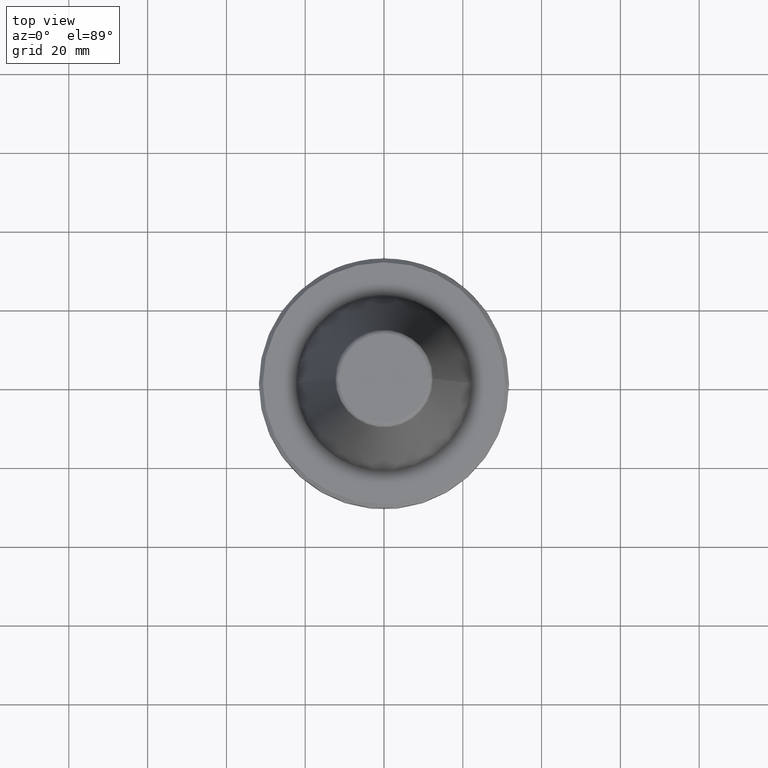
[diagram: clean part render]
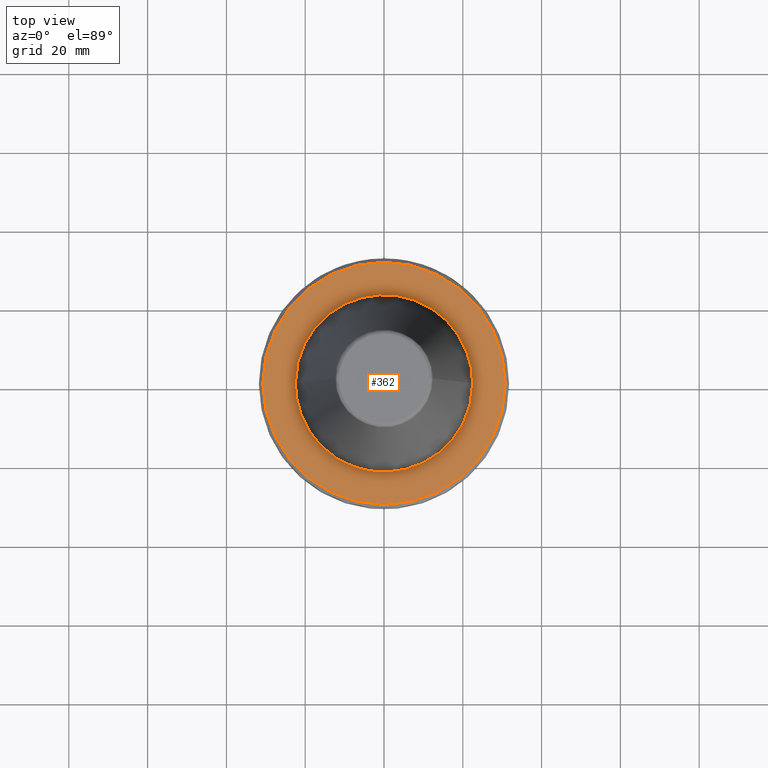
[diagram: same view with one face highlighted and labeled with its STEP entity id]
A machine part, top view. The second image highlights one B-rep face of the part: STEP entity #362.
In plain terms, the highlighted planar face has unit normal (0, 0, 1).
Its self-contained STEP definition (entity closure, byte-faithful):
#2 = CARTESIAN_POINT ( 'NONE',  ( 0.6879287486189594700, 22.50001621479642500, -3.199999999999999300 ) ) ;
#4 = CARTESIAN_POINT ( 'NONE',  ( -9.504079748845599700, 20.40055232577251900, -3.200000000000001500 ) ) ;
#9 = CARTESIAN_POINT ( 'NONE',  ( 21.99164062164117800, -4.811519987949947300, -3.200000000000000600 ) ) ;
#10 = CARTESIAN_POINT ( 'NONE',  ( -10.69502432680689100, 19.82135572082859200, -3.200000000000000600 ) ) ;
#17 = CARTESIAN_POINT ( 'NONE',  ( -11.67597141481949700, 19.24838585783297900, -3.200000000000001100 ) ) ;
#20 = CARTESIAN_POINT ( 'NONE',  ( 21.03591195338748300, -7.984698353444730200, -3.199999999999999300 ) ) ;
#61 = DIRECTION ( 'NONE',  ( -0.0000000000000000000, -0.0000000000000000000, 1.000000000000000000 ) ) ;
#77 = CARTESIAN_POINT ( 'NONE',  ( -4.719991316688983800, 22.00072453872944300, -3.200000000000000600 ) ) ;
#85 = CARTESIAN_POINT ( 'NONE',  ( 19.24838585783446000, 11.67597141481715200, -3.199999999999999700 ) ) ;
#89 = CARTESIAN_POINT ( 'NONE',  ( -6.571610993404996200, 21.54071728403503300, -3.199999999999999700 ) ) ;
#95 = CARTESIAN_POINT ( 'NONE',  ( 20.66783356944120300, 8.896980882709847500, -3.200000000000000200 ) ) ;
#98 = CARTESIAN_POINT ( 'NONE',  ( -7.603831144568696100, 21.18878749287429700, -3.200000000000000200 ) ) ;
#101 = CARTESIAN_POINT ( 'NONE',  ( 18.78040064549280100, 12.39175045570927500, -3.199999999999998800 ) ) ;
#104 = CARTESIAN_POINT ( 'NONE',  ( -8.324524703927975700, 20.90345235396907600, -3.199999999999999700 ) ) ;
#108 = FACE_OUTER_BOUND ( 'NONE', #422, .T. ) ;
#109 = CARTESIAN_POINT ( 'NONE',  ( -8.370451108366790300, 20.88510905071707000, -3.200000000000000200 ) ) ;
#119 = CARTESIAN_POINT ( 'NONE',  ( -1.375857497237935400, 22.49996757040714000, -3.199999999999999700 ) ) ;
#125 = CARTESIAN_POINT ( 'NONE',  ( -2.741286511587084400, 22.37475781688785000, -3.200000000000000200 ) ) ;
#126 = CARTESIAN_POINT ( 'NONE',  ( 4.719991316668444600, -22.00072453873692200, -3.200000000000000200 ) ) ;
#128 = CARTESIAN_POINT ( 'NONE',  ( 2.907343231789928200, 22.31611948088413700, -3.200000000000001100 ) ) ;
#129 = CARTESIAN_POINT ( 'NONE',  ( 21.74157624390884500, -5.873028755191072900, -3.200000000000000200 ) ) ;
#131 = EDGE_CURVE ( 'NONE', #1506, #1384, #964, .T. ) ;
#134 = CARTESIAN_POINT ( 'NONE',  ( -22.50000000000000700, 0.6880163828565797300, -3.200000000000001100 ) ) ;
#135 = CARTESIAN_POINT ( 'NONE',  ( -4.115307463143350800, 22.12045849206799600, -3.199999999999999700 ) ) ;
#136 = CARTESIAN_POINT ( 'NONE',  ( 5.341505914814308500, -21.86223353763812900, -3.199999999999999700 ) ) ;
#138 = CARTESIAN_POINT ( 'NONE',  ( -12.39175045570897300, 18.78040064549299600, -3.199999999999999700 ) ) ;
#143 = CARTESIAN_POINT ( 'NONE',  ( -4.139014538617297000, 22.11603594838256000, -3.200000000000000200 ) ) ;
#144 = CARTESIAN_POINT ( 'NONE',  ( 21.36063849915200700, -7.086048807701382100, -3.199999999999998800 ) ) ;
#146 = CARTESIAN_POINT ( 'NONE',  ( -12.47437238289334600, 18.72563884435544800, -3.200000000000000200 ) ) ;
#148 = CARTESIAN_POINT ( 'NONE',  ( 6.571610993358049800, -21.54071728405216400, -3.200000000000000600 ) ) ;
#149 = CARTESIAN_POINT ( 'NONE',  ( -12.63533988221804100, 18.61742605470986000, -3.200000000000000200 ) ) ;
#151 = CARTESIAN_POINT ( 'NONE',  ( 22.12851860711453600, -4.071751450877114200, -3.200000000000000200 ) ) ;
#210 = CARTESIAN_POINT ( 'NONE',  ( -5.341505914849514100, 21.86223353762529300, -3.200000000000000600 ) ) ;
#211 = CARTESIAN_POINT ( 'NONE',  ( 18.72563884435662000, 12.47437238289156800, -3.199999999999999300 ) ) ;
#212 = EDGE_CURVE ( 'NONE', #1384, #1506, #1522, .T. ) ;
#219 = CARTESIAN_POINT ( 'NONE',  ( -8.458563634142274500, 20.84958280862222700, -3.200000000000000200 ) ) ;
#227 = CARTESIAN_POINT ( 'NONE',  ( -22.50000000000000400, 2.755455298081544800E-015, -3.199999999999999300 ) ) ;
#230 = CARTESIAN_POINT ( 'NONE',  ( -8.590524805356333000, 20.79589492657273900, -3.199999999999999700 ) ) ;
#242 = CARTESIAN_POINT ( 'NONE',  ( -4.183831549484186700, 22.10760170058108200, -3.199999999999999700 ) ) ;
#244 = CARTESIAN_POINT ( 'NONE',  ( -4.251028217307362100, 22.09485092206773900, -3.200000000000001100 ) ) ;
#250 = CARTESIAN_POINT ( 'NONE',  ( -4.407618502888016800, 22.06440325785875700, -3.199999999999999300 ) ) ;
#251 = CARTESIAN_POINT ( 'NONE',  ( 7.603831144541866000, -21.18878749288407800, -3.200000000000000200 ) ) ;
#253 = CARTESIAN_POINT ( 'NONE',  ( 22.50000000000000400, 0.0000000000000000000, -3.199999999999999300 ) ) ;
#255 = CARTESIAN_POINT ( 'NONE',  ( -30.74999999999994300, 0.0000000000000000000, -3.200000000000036100 ) ) ;
#256 = CARTESIAN_POINT ( 'NONE',  ( 8.324524703929661500, -20.90345235396846500, -3.200000000000000600 ) ) ;
#257 = CARTESIAN_POINT ( 'NONE',  ( -12.87560569880213800, 18.45365423866010000, -3.200000000000001100 ) ) ;
#264 = CARTESIAN_POINT ( 'NONE',  ( -13.42792791067768300, 18.06135158014102500, -3.200000000000000200 ) ) ;
#269 = ORIENTED_EDGE ( 'NONE', *, *, #212, .T. ) ;
#300 = CARTESIAN_POINT ( 'NONE',  ( 0.0000000000000000000, 0.0000000000000000000, -3.200000000000036100 ) ) ;
#313 = CARTESIAN_POINT ( 'NONE',  ( -22.50000000000000400, 2.755455298081544800E-015, -3.199999999999999300 ) ) ;
#321 = CARTESIAN_POINT ( 'NONE',  ( -22.50000000000000700, -1.376388306158772500, -3.200000000000000600 ) ) ;
#322 = CARTESIAN_POINT ( 'NONE',  ( 22.50000000000000400, 0.0000000000000000000, -3.199999999999999300 ) ) ;
#324 = CARTESIAN_POINT ( 'NONE',  ( 18.61742605471209400, 12.63533988221464600, -3.199999999999999700 ) ) ;
#327 = CARTESIAN_POINT ( 'NONE',  ( -22.37479026312430700, -2.741111199249898400, -3.200000000000000600 ) ) ;
#329 = CARTESIAN_POINT ( 'NONE',  ( 22.50000000000000400, 1.376388306145680500, -3.200000000000000200 ) ) ;
#332 = CARTESIAN_POINT ( 'NONE',  ( 18.45365423866382000, 12.87560569879649600, -3.200000000000000200 ) ) ;
#344 = CARTESIAN_POINT ( 'NONE',  ( 18.06135158014742400, 13.42792791066801300, -3.200000000000000600 ) ) ;
#349 = CARTESIAN_POINT ( 'NONE',  ( 20.40055232577446300, 9.504079748842523000, -3.200000000000000600 ) ) ;
#352 = AXIS2_PLACEMENT_3D ( 'NONE', #300, #61, #955 ) ;
#362 = ADVANCED_FACE ( 'NONE', ( #1498, #108 ), #1120, .T. ) ;
#369 = CARTESIAN_POINT ( 'NONE',  ( 8.370451108365493600, -20.88510905071769100, -3.200000000000001100 ) ) ;
#370 = CARTESIAN_POINT ( 'NONE',  ( -22.17743819738468900, 3.797954953880907400, -3.199999999999999700 ) ) ;
#374 = CARTESIAN_POINT ( 'NONE',  ( 8.458563634139736100, -20.84958280862343500, -3.200000000000000600 ) ) ;
#379 = CARTESIAN_POINT ( 'NONE',  ( -14.49938022714616500, 17.23607257882436300, -3.199999999999999700 ) ) ;
#382 = CARTESIAN_POINT ( 'NONE',  ( 8.590524805351991600, -20.79589492657481400, -3.199999999999999700 ) ) ;
#383 = CARTESIAN_POINT ( 'NONE',  ( -15.36086717163463800, 16.45896426178976300, -3.200000000000001100 ) ) ;
#390 = B_SPLINE_CURVE_WITH_KNOTS ( 'NONE', 3,
 ( #730, #134, #1312, #726, #1056, #370, #941, #496, #1428, #1332, #1329, #1324, #1196, #1189, #1062, #1058, #1051, #840, #733, #728, #720, #628, #622, #616, #505, #501, #492, #383, #379, #264, #257, #149, #146, #138, #17, #10, #4, #1266, #230, #219, #109, #104, #98, #89, #210, #77, #250, #244, #242, #143, #135, #125, #119, #2, #731, #128, #1503, #1490, #1400, #1391, #1281, #1274, #1259, #1147, #1139, #1134, #1128, #1020, #1015, #1008, #1000, #913, #903, #897, #802, #796, #696, #690, #683, #573, #443, #344, #332, #324, #211, #101, #85, #580, #349, #95, #1397, #805, #1488, #1386, #1268, #1257, #1130, #998, #893, #793, #681, #567, #449, #440, #329, #322 ),
 .UNSPECIFIED., .F., .F.,
 ( 4, 1, 1, 1, 1, 1, 2, 2, 1, 1, 1, 1, 2, 2, 1, 1, 1, 2, 2, 2, 1, 1, 1, 2, 2, 1, 1, 1, 1, 2, 2, 1, 1, 1, 1, 1, 2, 2, 2, 1, 1, 1, 1, 1, 2, 2, 1, 1, 1, 1, 2, 2, 1, 1, 1, 2, 2, 2, 1, 1, 1, 2, 2, 1, 1, 1, 1, 2, 2, 1, 1, 1, 1, 1, 2, 2, 4 ),
 ( 0.0000000000000000000, 0.03124999999999839000, 0.04687499999999758500, 0.05468749999999717600, 0.05859374999999699500, 0.06054687499999689800, 0.06152343749999685700, 0.06249999999999680800, 0.09374999999999644700, 0.1093749999999962800, 0.1171874999999962000, 0.1210937499999961300, 0.1230468749999961400, 0.1249999999999961400, 0.1562499999999958900, 0.1718749999999958400, 0.1796874999999957800, 0.1835937499999957800, 0.1874999999999957800, 0.2499999999999961100, 0.2812499999999963400, 0.2968749999999964500, 0.3046874999999965000, 0.3085937499999965600, 0.3124999999999965600, 0.3437499999999969500, 0.3593749999999971700, 0.3671874999999973400, 0.3710937499999974500, 0.3730468749999974500, 0.3749999999999974500, 0.4062499999999965000, 0.4218749999999960000, 0.4296874999999957800, 0.4335937499999956700, 0.4355468749999956100, 0.4365234374999956100, 0.4374999999999956100, 0.4999999999999944500, 0.5312499999999938900, 0.5468749999999936700, 0.5546874999999936700, 0.5585937499999935600, 0.5605468749999935600, 0.5615234374999934500, 0.5624999999999934500, 0.5937499999999932300, 0.6093749999999931200, 0.6171874999999931200, 0.6210937499999930100, 0.6230468749999930100, 0.6249999999999930100, 0.6562499999999930100, 0.6718749999999931200, 0.6796874999999932300, 0.6835937499999932300, 0.6874999999999932300, 0.7499999999999935600, 0.7812499999999936700, 0.7968749999999937800, 0.8046874999999938900, 0.8085937499999938900, 0.8124999999999938900, 0.8437499999999942300, 0.8593749999999944500, 0.8671874999999946700, 0.8710937499999947800, 0.8730468749999948900, 0.8749999999999950000, 0.9062499999999963400, 0.9218749999999971100, 0.9296874999999975600, 0.9335937499999976700, 0.9355468749999977800, 0.9365234374999977800, 0.9374999999999978900, 1.000000000000000000 ),
 .UNSPECIFIED. ) ;
#407 = CARTESIAN_POINT ( 'NONE',  ( -22.12045798509555200, -4.115310202398622300, -3.200000000000000200 ) ) ;
#411 = CARTESIAN_POINT ( 'NONE',  ( -22.11603594838243900, -4.139014538617989700, -3.200000000000000600 ) ) ;
#419 = CARTESIAN_POINT ( 'NONE',  ( -22.10760170058084000, -4.183831549485550900, -3.200000000000000200 ) ) ;
#422 = EDGE_LOOP ( 'NONE', ( #919, #269 ) ) ;
#427 = CARTESIAN_POINT ( 'NONE',  ( -22.09485092206732700, -4.251028217309717600, -3.200000000000000600 ) ) ;
#433 = CARTESIAN_POINT ( 'NONE',  ( -22.06440325785796100, -4.407618502892575000, -3.200000000000000200 ) ) ;
#437 = CARTESIAN_POINT ( 'NONE',  ( -22.00072453872795100, -4.719991316697491600, -3.200000000000000600 ) ) ;
#440 = CARTESIAN_POINT ( 'NONE',  ( 22.37479026312431400, 2.741111199236805400, -3.200000000000000600 ) ) ;
#443 = CARTESIAN_POINT ( 'NONE',  ( 17.23607257883289300, 14.49938022713325700, -3.200000000000000200 ) ) ;
#449 = CARTESIAN_POINT ( 'NONE',  ( 22.12045798509555900, 4.115310202398825700, -3.200000000000000600 ) ) ;
#491 = AXIS2_PLACEMENT_3D ( 'NONE', #1439, #1075, #1476 ) ;
#492 = CARTESIAN_POINT ( 'NONE',  ( -17.00797338682269500, 14.81177920651246400, -3.200000000000000600 ) ) ;
#496 = CARTESIAN_POINT ( 'NONE',  ( -22.13986916256529700, 4.009566559497096200, -3.200000000000000200 ) ) ;
#500 = CARTESIAN_POINT ( 'NONE',  ( 8.896980882703543300, -20.66783356944393200, -3.199999999999999300 ) ) ;
#501 = CARTESIAN_POINT ( 'NONE',  ( -17.98264380950361400, 13.61204652639205500, -3.199999999999999700 ) ) ;
#505 = CARTESIAN_POINT ( 'NONE',  ( -18.88550870197691400, 12.23098025896405400, -3.200000000000000200 ) ) ;
#527 = CARTESIAN_POINT ( 'NONE',  ( -21.86223353762273500, -5.341505914864100600, -3.200000000000000600 ) ) ;
#545 = CARTESIAN_POINT ( 'NONE',  ( -21.54071728403163600, -6.571610993424445500, -3.200000000000000600 ) ) ;
#555 = CARTESIAN_POINT ( 'NONE',  ( -21.18878749287234700, -7.603831144579803700, -3.199999999999998800 ) ) ;
#565 = CARTESIAN_POINT ( 'NONE',  ( -20.90345235396920400, -8.324524703927284700, -3.199999999999999700 ) ) ;
#567 = CARTESIAN_POINT ( 'NONE',  ( 22.11603594838275600, 4.139014538616730300, -3.200000000000001100 ) ) ;
#573 = CARTESIAN_POINT ( 'NONE',  ( 16.45896426179462000, 15.36086717162726200, -3.199999999999999700 ) ) ;
#580 = CARTESIAN_POINT ( 'NONE',  ( 19.82135572083119300, 10.69502432680279600, -3.200000000000000600 ) ) ;
#604 = CARTESIAN_POINT ( 'NONE',  ( 9.504079748831721000, -20.40055232577914500, -3.200000000000000600 ) ) ;
#611 = CARTESIAN_POINT ( 'NONE',  ( 10.69502432678837800, -19.82135572083744200, -3.199999999999999700 ) ) ;
#614 = CARTESIAN_POINT ( 'NONE',  ( 21.14787063408966400, -7.686207123305460500, -3.200000000000000600 ) ) ;
#616 = CARTESIAN_POINT ( 'NONE',  ( -18.93590339580232400, 12.15280497094196100, -3.199999999999999700 ) ) ;
#617 = EDGE_LOOP ( 'NONE', ( #877, #926 ) ) ;
#622 = CARTESIAN_POINT ( 'NONE',  ( -19.03780993567813700, 11.99256734168333200, -3.200000000000000200 ) ) ;
#627 = CARTESIAN_POINT ( 'NONE',  ( 11.67597141480891300, -19.24838585783804100, -3.200000000000000600 ) ) ;
#628 = CARTESIAN_POINT ( 'NONE',  ( -19.18907189198502300, 11.75138774876048900, -3.200000000000000600 ) ) ;
#632 = CARTESIAN_POINT ( 'NONE',  ( 12.39175045571029600, -18.78040064549236700, -3.200000000000000200 ) ) ;
#652 = CARTESIAN_POINT ( 'NONE',  ( -20.88510905071626700, -8.370451108368008900, -3.199999999999999700 ) ) ;
#657 = CARTESIAN_POINT ( 'NONE',  ( -20.84958280862066700, -8.458563634144654800, -3.200000000000000600 ) ) ;
#662 = CARTESIAN_POINT ( 'NONE',  ( -20.79589492657008900, -8.590524805360397300, -3.200000000000000200 ) ) ;
#671 = CARTESIAN_POINT ( 'NONE',  ( -20.66783356943510700, -8.896980882719226700, -3.200000000000000200 ) ) ;
#675 = CARTESIAN_POINT ( 'NONE',  ( -20.40055232576401100, -9.504079748858595500, -3.199999999999999700 ) ) ;
#681 = CARTESIAN_POINT ( 'NONE',  ( 22.10760170058146200, 4.183831549483062200, -3.200000000000000200 ) ) ;
#683 = CARTESIAN_POINT ( 'NONE',  ( 14.81177920650271000, 17.00797338683744500, -3.200000000000000600 ) ) ;
#690 = CARTESIAN_POINT ( 'NONE',  ( 13.61204652639695000, 17.98264380950372400, -3.200000000000000200 ) ) ;
#696 = CARTESIAN_POINT ( 'NONE',  ( 12.23098025896375600, 18.88550870197690300, -3.199999999999999700 ) ) ;
#699 = DIRECTION ( 'NONE',  ( 1.000000000000000000, 0.0000000000000000000, -0.0000000000000000000 ) ) ;
#714 = CARTESIAN_POINT ( 'NONE',  ( 12.47437238289376500, -18.72563884435562500, -3.200000000000000600 ) ) ;
#720 = CARTESIAN_POINT ( 'NONE',  ( -19.53083148215308600, 11.18287332202958400, -3.199999999999999300 ) ) ;
#726 = CARTESIAN_POINT ( 'NONE',  ( -22.31609819896381800, 2.907458251726792000, -3.199999999999999700 ) ) ;
#728 = CARTESIAN_POINT ( 'NONE',  ( -20.16961076429744200, 10.02279629559074100, -3.199999999999999300 ) ) ;
#730 = CARTESIAN_POINT ( 'NONE',  ( -22.50000000000000400, 2.755455298081544800E-015, -3.199999999999999300 ) ) ;
#731 = CARTESIAN_POINT ( 'NONE',  ( 1.715646394992351700, 22.45307472456536100, -3.200000000000000600 ) ) ;
#732 = CARTESIAN_POINT ( 'NONE',  ( 4.251028217301676900, -22.09485092206981000, -3.200000000000000200 ) ) ;
#733 = CARTESIAN_POINT ( 'NONE',  ( -20.64043889494947600, 8.988933404968230800, -3.200000000000000600 ) ) ;
#761 = CARTESIAN_POINT ( 'NONE',  ( -19.82135572081725200, -10.69502432682423000, -3.200000000000000600 ) ) ;
#762 = VERTEX_POINT ( 'NONE', #1152 ) ;
#768 = CARTESIAN_POINT ( 'NONE',  ( -19.24838585782649900, -11.67597141482940200, -3.199999999999999700 ) ) ;
#776 = CARTESIAN_POINT ( 'NONE',  ( -18.78040064549380300, -12.39175045570773800, -3.200000000000000600 ) ) ;
#779 = CARTESIAN_POINT ( 'NONE',  ( -18.72563884435658800, -12.47437238289159500, -3.200000000000000200 ) ) ;
#783 = CARTESIAN_POINT ( 'NONE',  ( -18.61742605471202700, -12.63533988221470800, -3.199999999999999700 ) ) ;
#790 = CARTESIAN_POINT ( 'NONE',  ( -18.45365423866372400, -12.87560569879659900, -3.200000000000001100 ) ) ;
#793 = CARTESIAN_POINT ( 'NONE',  ( 22.09485092206839200, 4.251028217305421500, -3.199999999999999700 ) ) ;
#796 = CARTESIAN_POINT ( 'NONE',  ( 12.15280497093997500, 18.93590339580323000, -3.200000000000000200 ) ) ;
#802 = CARTESIAN_POINT ( 'NONE',  ( 11.99256734167953400, 19.03780993567986700, -3.199999999999999300 ) ) ;
#805 = CARTESIAN_POINT ( 'NONE',  ( 20.84958280862257900, 8.458563634141711400, -3.200000000000000200 ) ) ;
#825 = CARTESIAN_POINT ( 'NONE',  ( 12.63533988221884200, -18.61742605471019700, -3.200000000000000200 ) ) ;
#839 = CARTESIAN_POINT ( 'NONE',  ( 22.49999999999999600, -0.6880163828697204400, -3.199999999999998800 ) ) ;
#840 = CARTESIAN_POINT ( 'NONE',  ( -20.93772414133938800, 8.237955812653009200, -3.200000000000000200 ) ) ;
#847 = CARTESIAN_POINT ( 'NONE',  ( 12.87560569880346700, -18.45365423866068300, -3.200000000000000600 ) ) ;
#865 = CARTESIAN_POINT ( 'NONE',  ( -18.06135158014722800, -13.42792791066820300, -3.200000000000000600 ) ) ;
#870 = CARTESIAN_POINT ( 'NONE',  ( -17.23607257883263300, -14.49938022713351800, -3.200000000000000200 ) ) ;
#876 = CARTESIAN_POINT ( 'NONE',  ( -16.45896426179448100, -15.36086717162741000, -3.200000000000001100 ) ) ;
#877 = ORIENTED_EDGE ( 'NONE', *, *, #1509, .T. ) ;
#883 = CARTESIAN_POINT ( 'NONE',  ( -14.81177920650302200, -17.00797338683712900, -3.199999999999999300 ) ) ;
#889 = CARTESIAN_POINT ( 'NONE',  ( -13.61204652640028800, -17.98264380950038800, -3.200000000000000200 ) ) ;
#891 = CARTESIAN_POINT ( 'NONE',  ( -12.23098025896354500, -18.88550870197710900, -3.200000000000000200 ) ) ;
#893 = CARTESIAN_POINT ( 'NONE',  ( 22.06440325786003600, 4.407618502884258900, -3.200000000000000200 ) ) ;
#897 = CARTESIAN_POINT ( 'NONE',  ( 11.75138774875418000, 19.18907189198790100, -3.200000000000001100 ) ) ;
#903 = CARTESIAN_POINT ( 'NONE',  ( 11.18287332201877700, 19.53083148215803900, -3.200000000000000600 ) ) ;
#913 = CARTESIAN_POINT ( 'NONE',  ( 10.02279629557633300, 20.16961076430403600, -3.200000000000000600 ) ) ;
#919 = ORIENTED_EDGE ( 'NONE', *, *, #131, .T. ) ;
#926 = ORIENTED_EDGE ( 'NONE', *, *, #932, .T. ) ;
#932 = EDGE_CURVE ( 'NONE', #762, #1244, #1269, .T. ) ;
#935 = CARTESIAN_POINT ( 'NONE',  ( 13.42792791067997600, -18.06135158014202000, -3.199999999999999700 ) ) ;
#941 = CARTESIAN_POINT ( 'NONE',  ( -22.15133245634663700, 3.946100473368277900, -3.200000000000000200 ) ) ;
#947 = CARTESIAN_POINT ( 'NONE',  ( 4.183831549480899500, -22.10760170058227900, -3.200000000000000200 ) ) ;
#952 = CARTESIAN_POINT ( 'NONE',  ( 14.49938022714922100, -17.23607257882569900, -3.199999999999999300 ) ) ;
#955 = DIRECTION ( 'NONE',  ( 1.000000000000000000, 0.0000000000000000000, 0.0000000000000000000 ) ) ;
#962 = DIRECTION ( 'NONE',  ( 0.0000000000000000000, 0.0000000000000000000, 1.000000000000000000 ) ) ;
#964 = CIRCLE ( 'NONE', #352, 30.74999999999994300 ) ;
#969 = CARTESIAN_POINT ( 'NONE',  ( -12.15280497094398100, -18.93590339580075400, -3.199999999999999700 ) ) ;
#988 = CARTESIAN_POINT ( 'NONE',  ( -11.99256734168715800, -19.03780993567515600, -3.200000000000000200 ) ) ;
#997 = CARTESIAN_POINT ( 'NONE',  ( -11.75138774876684200, -19.18907189198004900, -3.200000000000000200 ) ) ;
#998 = CARTESIAN_POINT ( 'NONE',  ( 22.00072453873180600, 4.719991316681966300, -3.200000000000000200 ) ) ;
#1000 = CARTESIAN_POINT ( 'NONE',  ( 8.988933404959995600, 20.64043889495324200, -3.200000000000000600 ) ) ;
#1002 = CARTESIAN_POINT ( 'NONE',  ( -11.18287332204048700, -19.53083148214458500, -3.200000000000000600 ) ) ;
#1008 = CARTESIAN_POINT ( 'NONE',  ( 8.237955812653522600, 20.93772414133914200, -3.199999999999999700 ) ) ;
#1015 = CARTESIAN_POINT ( 'NONE',  ( 8.197263642342381500, 20.95368502148494400, -3.199999999999999700 ) ) ;
#1020 = CARTESIAN_POINT ( 'NONE',  ( 8.112282896138385300, 20.98673507276721400, -3.200000000000000200 ) ) ;
#1042 = CARTESIAN_POINT ( 'NONE',  ( 15.36086717163637700, -16.45896426179050900, -3.199999999999999700 ) ) ;
#1049 = CARTESIAN_POINT ( 'NONE',  ( 17.00797338681919900, -14.81177920651095200, -3.200000000000000600 ) ) ;
#1051 = CARTESIAN_POINT ( 'NONE',  ( -20.95368502148434700, 8.197263642344069000, -3.199999999999999300 ) ) ;
#1056 = CARTESIAN_POINT ( 'NONE',  ( -22.22708190165376200, 3.501431974159047400, -3.199999999999999700 ) ) ;
#1057 = CARTESIAN_POINT ( 'NONE',  ( 17.98264380952407700, -13.61204652636657500, -3.199999999999999700 ) ) ;
#1058 = CARTESIAN_POINT ( 'NONE',  ( -20.98673507276603100, 8.112282896141666200, -3.200000000000000600 ) ) ;
#1062 = CARTESIAN_POINT ( 'NONE',  ( -21.03591195339058500, 7.984698353433742600, -3.200000000000000600 ) ) ;
#1068 = CARTESIAN_POINT ( 'NONE',  ( 18.88550870197563500, -12.23098025896565000, -3.200000000000000200 ) ) ;
#1075 = DIRECTION ( 'NONE',  ( -0.0000000000000000000, -0.0000000000000000000, 1.000000000000000000 ) ) ;
#1086 = CARTESIAN_POINT ( 'NONE',  ( -10.02279629560528400, -20.16961076428609100, -3.200000000000000600 ) ) ;
#1097 = CARTESIAN_POINT ( 'NONE',  ( -8.988933404976533500, -20.64043889494298900, -3.199999999999999700 ) ) ;
#1102 = CARTESIAN_POINT ( 'NONE',  ( 0.0000000000000000000, 0.0000000000000000000, -3.200000000000000200 ) ) ;
#1104 = CARTESIAN_POINT ( 'NONE',  ( -8.237955812652499400, -20.93772414133978200, -3.199999999999999700 ) ) ;
#1110 = CARTESIAN_POINT ( 'NONE',  ( -8.197263642347373000, -20.95368502148340900, -3.199999999999999700 ) ) ;
#1120 = PLANE ( 'NONE',  #1194 ) ;
#1122 = CARTESIAN_POINT ( 'NONE',  ( -8.112282896148109000, -20.98673507276421500, -3.200000000000000200 ) ) ;
#1128 = CARTESIAN_POINT ( 'NONE',  ( 7.984698353428139100, 21.03591195339260300, -3.200000000000000200 ) ) ;
#1130 = CARTESIAN_POINT ( 'NONE',  ( 21.86223353762935800, 5.341505914837489000, -3.200000000000000600 ) ) ;
#1134 = CARTESIAN_POINT ( 'NONE',  ( 7.686207123274499500, 21.14787063409919600, -3.200000000000000600 ) ) ;
#1139 = CARTESIAN_POINT ( 'NONE',  ( 7.086048807648322300, 21.36063849916836300, -3.200000000000000600 ) ) ;
#1147 = CARTESIAN_POINT ( 'NONE',  ( 5.873028755120320600, 21.74157624393063400, -3.200000000000000600 ) ) ;
#1152 = CARTESIAN_POINT ( 'NONE',  ( 22.50000000000000400, 0.0000000000000000000, -3.199999999999999300 ) ) ;
#1169 = CARTESIAN_POINT ( 'NONE',  ( 18.93590339580105900, -12.15280497094321500, -3.200000000000000200 ) ) ;
#1174 = CARTESIAN_POINT ( 'NONE',  ( 22.45304634867161300, -1.715799754931167900, -3.200000000000000200 ) ) ;
#1188 = CARTESIAN_POINT ( 'NONE',  ( 2.741286511513688400, -22.37475781689234500, -3.199999999999999700 ) ) ;
#1189 = CARTESIAN_POINT ( 'NONE',  ( -21.14787063409543700, 7.686207123284956900, -3.200000000000000200 ) ) ;
#1194 = AXIS2_PLACEMENT_3D ( 'NONE', #1102, #962, #699 ) ;
#1195 = CARTESIAN_POINT ( 'NONE',  ( 19.03780993567572800, -11.99256734168571200, -3.200000000000000200 ) ) ;
#1196 = CARTESIAN_POINT ( 'NONE',  ( -21.36063849916189700, 7.086048807666240500, -3.199999999999999300 ) ) ;
#1203 = CARTESIAN_POINT ( 'NONE',  ( 19.18907189198100100, -11.75138774876444200, -3.200000000000001100 ) ) ;
#1227 = CARTESIAN_POINT ( 'NONE',  ( -7.984698353444732000, -21.03591195338748700, -3.200000000000000200 ) ) ;
#1232 = CARTESIAN_POINT ( 'NONE',  ( -7.686207123305462300, -21.14787063408966000, -3.200000000000000600 ) ) ;
#1240 = CARTESIAN_POINT ( 'NONE',  ( -7.086048807701388300, -21.36063849915201700, -3.200000000000001100 ) ) ;
#1244 = VERTEX_POINT ( 'NONE', #227 ) ;
#1251 = CARTESIAN_POINT ( 'NONE',  ( -5.873028755191068500, -21.74157624390884200, -3.200000000000001100 ) ) ;
#1255 = CARTESIAN_POINT ( 'NONE',  ( -4.811519987949943700, -21.99164062164117100, -3.199999999999999700 ) ) ;
#1257 = CARTESIAN_POINT ( 'NONE',  ( 21.54071728404044400, 6.571610993388965500, -3.200000000000000200 ) ) ;
#1259 = CARTESIAN_POINT ( 'NONE',  ( 4.811519987909519200, 21.99164062165363400, -3.200000000000000200 ) ) ;
#1266 = CARTESIAN_POINT ( 'NONE',  ( -8.896980882711639900, 20.66783356944006700, -3.199999999999999700 ) ) ;
#1268 = CARTESIAN_POINT ( 'NONE',  ( 21.18878749287739200, 7.603831144559534600, -3.200000000000000600 ) ) ;
#1269 = B_SPLINE_CURVE_WITH_KNOTS ( 'NONE', 3,
 ( #253, #839, #1174, #1309, #1313, #1322, #1328, #1432, #1436, #151, #9, #129, #144, #614, #20, #1527, #1442, #1430, #1418, #1336, #1331, #1203, #1195, #1169, #1068, #1057, #1049, #1042, #952, #935, #847, #825, #714, #632, #627, #611, #604, #500, #382, #374, #369, #256, #251, #148, #136, #126, #1525, #732, #947, #1310, #1421, #1188, #1484, #1478, #1469, #1463, #1460, #1377, #1372, #1366, #1358, #1353, #1255, #1251, #1240, #1232, #1227, #1122, #1110, #1104, #1097, #1086, #1002, #997, #988, #969, #891, #889, #883, #876, #870, #865, #790, #783, #779, #776, #768, #761, #675, #671, #662, #657, #652, #565, #555, #545, #527, #437, #433, #427, #419, #411, #407, #327, #321, #313 ),
 .UNSPECIFIED., .F., .F.,
 ( 4, 1, 1, 1, 1, 1, 2, 2, 1, 1, 1, 1, 2, 2, 1, 1, 1, 2, 2, 2, 1, 1, 1, 2, 2, 1, 1, 1, 1, 2, 2, 1, 1, 1, 1, 1, 2, 2, 2, 1, 1, 1, 1, 1, 2, 2, 1, 1, 1, 1, 2, 2, 1, 1, 1, 2, 2, 2, 1, 1, 1, 2, 2, 1, 1, 1, 1, 2, 2, 1, 1, 1, 1, 1, 2, 2, 4 ),
 ( 0.0000000000000000000, 0.03124999999999908400, 0.04687499999999860500, 0.05468749999999836900, 0.05859374999999825800, 0.06054687499999819600, 0.06152343749999818900, 0.06249999999999818200, 0.09374999999999732200, 0.1093749999999968900, 0.1171874999999966700, 0.1210937499999965400, 0.1230468749999965400, 0.1249999999999965300, 0.1562499999999963600, 0.1718749999999962500, 0.1796874999999961700, 0.1835937499999960900, 0.1874999999999960000, 0.2499999999999953400, 0.2812499999999949500, 0.2968749999999948400, 0.3046874999999947800, 0.3085937499999947800, 0.3124999999999947800, 0.3437499999999951200, 0.3593749999999953400, 0.3671874999999953900, 0.3710937499999954500, 0.3730468749999955000, 0.3749999999999955600, 0.4062499999999958400, 0.4218749999999960000, 0.4296874999999960600, 0.4335937499999960600, 0.4355468749999960600, 0.4365234374999960600, 0.4374999999999960000, 0.4999999999999953400, 0.5312499999999950000, 0.5468749999999947800, 0.5546874999999946700, 0.5585937499999946700, 0.5605468749999945600, 0.5615234374999945600, 0.5624999999999944500, 0.5937499999999942300, 0.6093749999999941200, 0.6171874999999940000, 0.6210937499999938900, 0.6230468749999940000, 0.6249999999999940000, 0.6562499999999947800, 0.6718749999999952300, 0.6796874999999954500, 0.6835937499999955600, 0.6874999999999955600, 0.7499999999999982200, 0.7812499999999995600, 0.7968750000000002200, 0.8046875000000005600, 0.8085937500000007800, 0.8125000000000008900, 0.8437500000000022200, 0.8593750000000028900, 0.8671875000000032200, 0.8710937500000033300, 0.8730468750000034400, 0.8750000000000034400, 0.9062500000000028900, 0.9218750000000026600, 0.9296875000000025500, 0.9335937500000024400, 0.9355468750000023300, 0.9365234375000023300, 0.9375000000000022200, 1.000000000000000000 ),
 .UNSPECIFIED. ) ;
#1274 = CARTESIAN_POINT ( 'NONE',  ( 4.071751450878374500, 22.12851860711415200, -3.200000000000000200 ) ) ;
#1281 = CARTESIAN_POINT ( 'NONE',  ( 4.051866326834534100, 22.13216683465163800, -3.200000000000001100 ) ) ;
#1309 = CARTESIAN_POINT ( 'NONE',  ( 22.31609819896382200, -2.907458251744042200, -3.200000000000000600 ) ) ;
#1310 = CARTESIAN_POINT ( 'NONE',  ( 4.139014538615635200, -22.11603594838316400, -3.200000000000000200 ) ) ;
#1312 = CARTESIAN_POINT ( 'NONE',  ( -22.45304634867162000, 1.715799754908170300, -3.200000000000000600 ) ) ;
#1313 = CARTESIAN_POINT ( 'NONE',  ( 22.22708190165376200, -3.501431974169107800, -3.200000000000000200 ) ) ;
#1321 = CARTESIAN_POINT ( 'NONE',  ( 30.74999999999994300, 3.827021247335470200E-015, -3.200000000000036100 ) ) ;
#1322 = CARTESIAN_POINT ( 'NONE',  ( 22.17743819738469600, -3.797954953886299600, -3.200000000000000600 ) ) ;
#1324 = CARTESIAN_POINT ( 'NONE',  ( -21.74157624392201900, 5.873028755144217100, -3.200000000000000200 ) ) ;
#1328 = CARTESIAN_POINT ( 'NONE',  ( 22.15133245634663300, -3.946100473371058700, -3.199999999999999700 ) ) ;
#1329 = CARTESIAN_POINT ( 'NONE',  ( -21.99164062164871000, 4.811519987923173100, -3.200000000000001100 ) ) ;
#1331 = CARTESIAN_POINT ( 'NONE',  ( 19.53083148214621900, -11.18287332203636600, -3.200000000000000200 ) ) ;
#1332 = CARTESIAN_POINT ( 'NONE',  ( -22.12851860711429500, 4.071751450877952600, -3.199999999999999300 ) ) ;
#1336 = CARTESIAN_POINT ( 'NONE',  ( 20.16961076428826500, -10.02279629559978100, -3.199999999999998800 ) ) ;
#1353 = CARTESIAN_POINT ( 'NONE',  ( -4.071751450877116900, -22.12851860711453300, -3.199999999999999700 ) ) ;
#1358 = CARTESIAN_POINT ( 'NONE',  ( -4.051866326836864700, -22.13216683465148900, -3.199999999999999700 ) ) ;
#1366 = CARTESIAN_POINT ( 'NONE',  ( -4.009555819172765800, -22.13987114982767300, -3.200000000000000200 ) ) ;
#1372 = CARTESIAN_POINT ( 'NONE',  ( -3.946081902448917300, -22.15133589248955200, -3.200000000000000600 ) ) ;
#1377 = CARTESIAN_POINT ( 'NONE',  ( -3.797919010166013600, -22.17744484798386800, -3.200000000000001100 ) ) ;
#1384 = VERTEX_POINT ( 'NONE', #1321 ) ;
#1386 = CARTESIAN_POINT ( 'NONE',  ( 20.90345235396888100, 8.324524703928553000, -3.200000000000000200 ) ) ;
#1391 = CARTESIAN_POINT ( 'NONE',  ( 4.009555819168163300, 22.13987114982794000, -3.199999999999999700 ) ) ;
#1397 = CARTESIAN_POINT ( 'NONE',  ( 20.79589492657334300, 8.590524805355373800, -3.199999999999999300 ) ) ;
#1400 = CARTESIAN_POINT ( 'NONE',  ( 3.946081902440961000, 22.15133589249003200, -3.200000000000000600 ) ) ;
#1418 = CARTESIAN_POINT ( 'NONE',  ( 20.64043889494423200, -8.988933404973398200, -3.200000000000001100 ) ) ;
#1421 = CARTESIAN_POINT ( 'NONE',  ( 4.115307463144500100, -22.12045849206793200, -3.200000000000000600 ) ) ;
#1428 = CARTESIAN_POINT ( 'NONE',  ( -22.13216582914423100, 4.051871761184235000, -3.200000000000000200 ) ) ;
#1430 = CARTESIAN_POINT ( 'NONE',  ( 20.93772414133970000, -8.237955812652693100, -3.200000000000000200 ) ) ;
#1432 = CARTESIAN_POINT ( 'NONE',  ( 22.13986916256529000, -4.009566559498702000, -3.199999999999999300 ) ) ;
#1436 = CARTESIAN_POINT ( 'NONE',  ( 22.13216582914422800, -4.051871761185046800, -3.199999999999999300 ) ) ;
#1439 = CARTESIAN_POINT ( 'NONE',  ( 0.0000000000000000000, 0.0000000000000000000, -3.200000000000036100 ) ) ;
#1442 = CARTESIAN_POINT ( 'NONE',  ( 20.95368502148340500, -8.197263642347369500, -3.199999999999999700 ) ) ;
#1460 = CARTESIAN_POINT ( 'NONE',  ( -3.501364879224580000, -22.22709431610556100, -3.200000000000000600 ) ) ;
#1463 = CARTESIAN_POINT ( 'NONE',  ( -2.907343231839132800, -22.31611948088118800, -3.200000000000000600 ) ) ;
#1469 = CARTESIAN_POINT ( 'NONE',  ( -1.715646395057947200, -22.45307472456143200, -3.200000000000000600 ) ) ;
#1476 = DIRECTION ( 'NONE',  ( 1.000000000000000000, 0.0000000000000000000, 0.0000000000000000000 ) ) ;
#1478 = CARTESIAN_POINT ( 'NONE',  ( -0.6879287486564484900, -22.50001621479418300, -3.200000000000000200 ) ) ;
#1484 = CARTESIAN_POINT ( 'NONE',  ( 1.375857497312903900, -22.49996757041163400, -3.199999999999999300 ) ) ;
#1488 = CARTESIAN_POINT ( 'NONE',  ( 20.88510905071724400, 8.370451108366499000, -3.200000000000001100 ) ) ;
#1490 = CARTESIAN_POINT ( 'NONE',  ( 3.797919010150632600, 22.17744484798479100, -3.200000000000000600 ) ) ;
#1498 = FACE_BOUND ( 'NONE', #617, .T. ) ;
#1503 = CARTESIAN_POINT ( 'NONE',  ( 3.501364879195867800, 22.22709431610727600, -3.200000000000000600 ) ) ;
#1506 = VERTEX_POINT ( 'NONE', #255 ) ;
#1509 = EDGE_CURVE ( 'NONE', #1244, #762, #390, .T. ) ;
#1522 = CIRCLE ( 'NONE', #491, 30.74999999999994300 ) ;
#1525 = CARTESIAN_POINT ( 'NONE',  ( 4.407618502877016700, -22.06440325786277500, -3.200000000000000600 ) ) ;
#1527 = CARTESIAN_POINT ( 'NONE',  ( 20.98673507276421500, -8.112282896148103700, -3.200000000000000200 ) ) ;